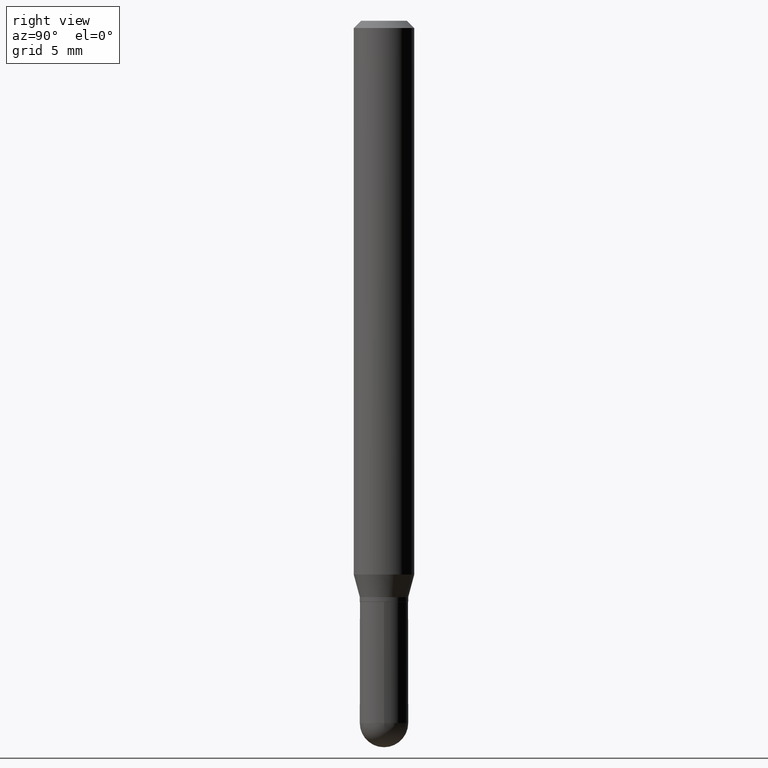
[diagram: clean part render]
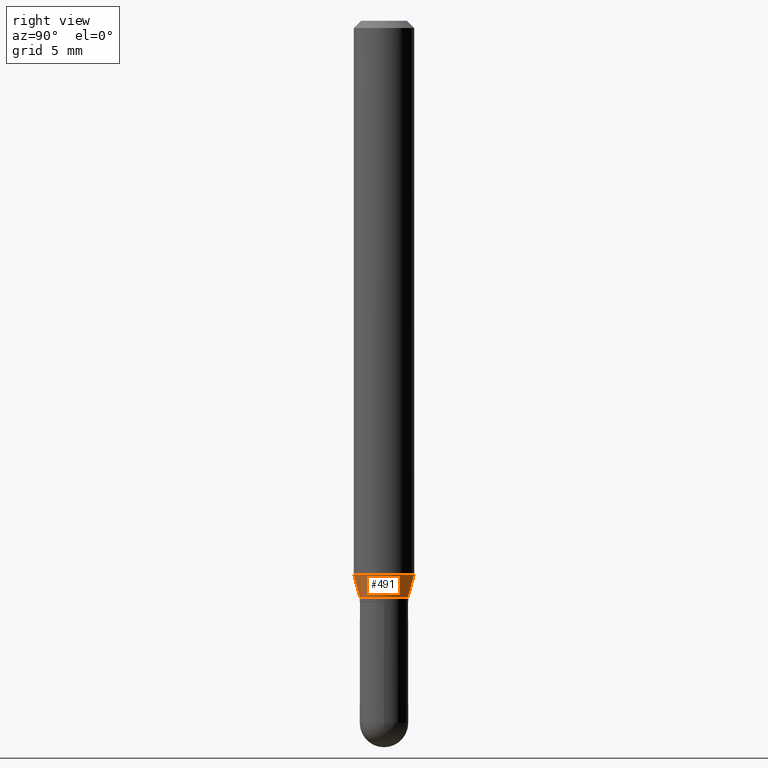
[diagram: same view with one face highlighted and labeled with its STEP entity id]
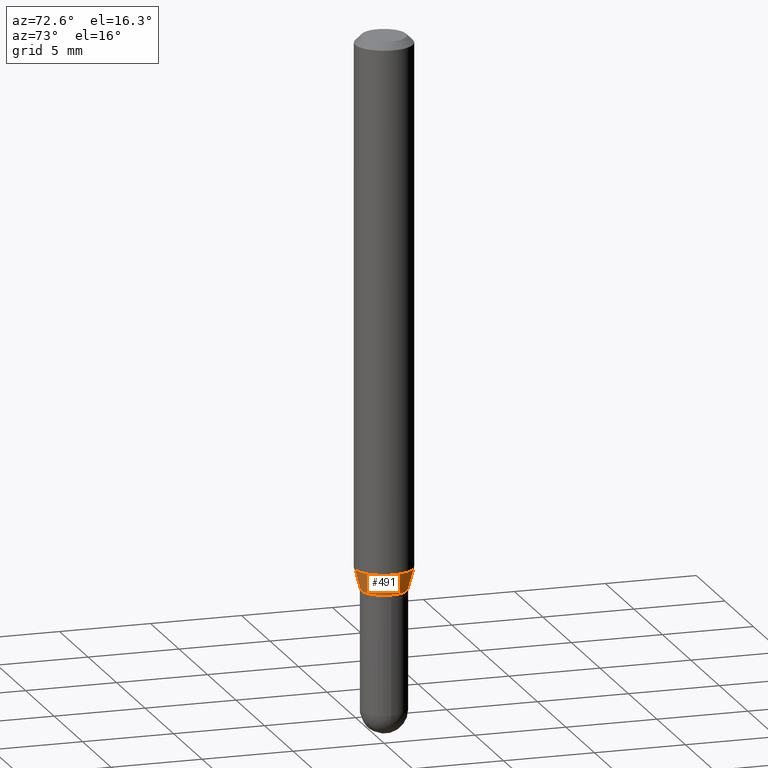
[diagram: same view with one face highlighted and labeled with its STEP entity id]
A machine part, right view. The second image highlights one B-rep face of the part: STEP entity #491.
A second angle (auxiliary view) of the same face is appended — the face is thin or edge-on in the first view.
In plain terms, the highlighted conical surface has half-angle 15 deg.
Its self-contained STEP definition (entity closure, byte-faithful):
#4 = DIRECTION ( 'NONE',  ( -2.445455409142924430E-29, 3.491500524170105647E-15, 1.000000000000000000 ) ) ;
#10 = DIRECTION ( 'NONE',  ( -1.807323732225328167E-15, -0.2588190451025179084, 0.9659258262890690894 ) ) ;
#19 = CARTESIAN_POINT ( 'NONE',  ( 3.552713678800795963E-16, 0.04999999999999590883, -1.190000000000000391 ) ) ;
#47 = VECTOR ( 'NONE', #350, 39.37007874015748854 ) ;
#57 = LINE ( 'NONE', #19, #47 ) ;
#72 = CIRCLE ( 'NONE', #338, 0.06250000000000000000 ) ;
#79 = ORIENTED_EDGE ( 'NONE', *, *, #131, .F. ) ;
#87 = LINE ( 'NONE', #89, #162 ) ;
#89 = CARTESIAN_POINT ( 'NONE',  ( -3.491481338842845914E-16, -0.05000000000000422162, -1.189999999999999947 ) ) ;
#99 = AXIS2_PLACEMENT_3D ( 'NONE', #222, #452, #261 ) ;
#131 = EDGE_CURVE ( 'NONE', #495, #273, #87, .T. ) ;
#147 = CARTESIAN_POINT ( 'NONE',  ( 4.440892098500904235E-16, 0.06249999999999599626, -1.143349364905389853 ) ) ;
#162 = VECTOR ( 'NONE', #10, 39.37007874015748143 ) ;
#165 = DIRECTION ( 'NONE',  ( -6.982962677686265922E-15, -1.000000000000000000, 4.370956789862821150E-15 ) ) ;
#199 = AXIS2_PLACEMENT_3D ( 'NONE', #234, #201, #511 ) ;
#201 = DIRECTION ( 'NONE',  ( -2.445455409142924430E-29, 3.491500524170105647E-15, 1.000000000000000000 ) ) ;
#216 = CARTESIAN_POINT ( 'NONE',  ( 2.796009888948012250E-29, -3.992004906876724635E-15, -1.143349364905389409 ) ) ;
#222 = CARTESIAN_POINT ( 'NONE',  ( 2.910091936880080548E-29, -4.154885623762426287E-15, -1.190000000000000169 ) ) ;
#228 = EDGE_CURVE ( 'NONE', #273, #403, #72, .T. ) ;
#234 = CARTESIAN_POINT ( 'NONE',  ( 2.910091936880080548E-29, -4.154885623762426287E-15, -1.190000000000000169 ) ) ;
#261 = DIRECTION ( 'NONE',  ( -6.982962677686265133E-15, -1.000000000000000000, 2.731847993664259669E-15 ) ) ;
#273 = VERTEX_POINT ( 'NONE', #365 ) ;
#320 = FACE_OUTER_BOUND ( 'NONE', #431, .T. ) ;
#326 = VERTEX_POINT ( 'NONE', #421 ) ;
#334 = EDGE_CURVE ( 'NONE', #326, #403, #57, .T. ) ;
#338 = AXIS2_PLACEMENT_3D ( 'NONE', #216, #4, #165 ) ;
#342 = ORIENTED_EDGE ( 'NONE', *, *, #387, .T. ) ;
#345 = ORIENTED_EDGE ( 'NONE', *, *, #228, .F. ) ;
#350 = DIRECTION ( 'NONE',  ( 1.839019923739597949E-15, 0.2588190451025246253, 0.9659258262890670910 ) ) ;
#365 = CARTESIAN_POINT ( 'NONE',  ( -4.364351673553637142E-16, -0.06250000000000399680, -1.143349364905389187 ) ) ;
#387 = EDGE_CURVE ( 'NONE', #495, #326, #508, .T. ) ;
#403 = VERTEX_POINT ( 'NONE', #147 ) ;
#416 = ORIENTED_EDGE ( 'NONE', *, *, #334, .T. ) ;
#421 = CARTESIAN_POINT ( 'NONE',  ( 3.996802888650851578E-16, 0.04999999999999590883, -1.190000000000000391 ) ) ;
#425 = CONICAL_SURFACE ( 'NONE', #199, 0.05000000000000006523, 0.2617993877991499629 ) ;
#431 = EDGE_LOOP ( 'NONE', ( #342, #416, #345, #79 ) ) ;
#452 = DIRECTION ( 'NONE',  ( -2.445455409142924430E-29, 3.491500524170105647E-15, 1.000000000000000000 ) ) ;
#464 = CARTESIAN_POINT ( 'NONE',  ( -3.491481338842845914E-16, -0.05000000000000422162, -1.189999999999999947 ) ) ;
#491 = ADVANCED_FACE ( 'NONE', ( #320 ), #425, .T. ) ;
#495 = VERTEX_POINT ( 'NONE', #464 ) ;
#508 = CIRCLE ( 'NONE', #99, 0.05000000000000006523 ) ;
#511 = DIRECTION ( 'NONE',  ( -6.982962677686265133E-15, -1.000000000000000000, 2.731847993664259669E-15 ) ) ;